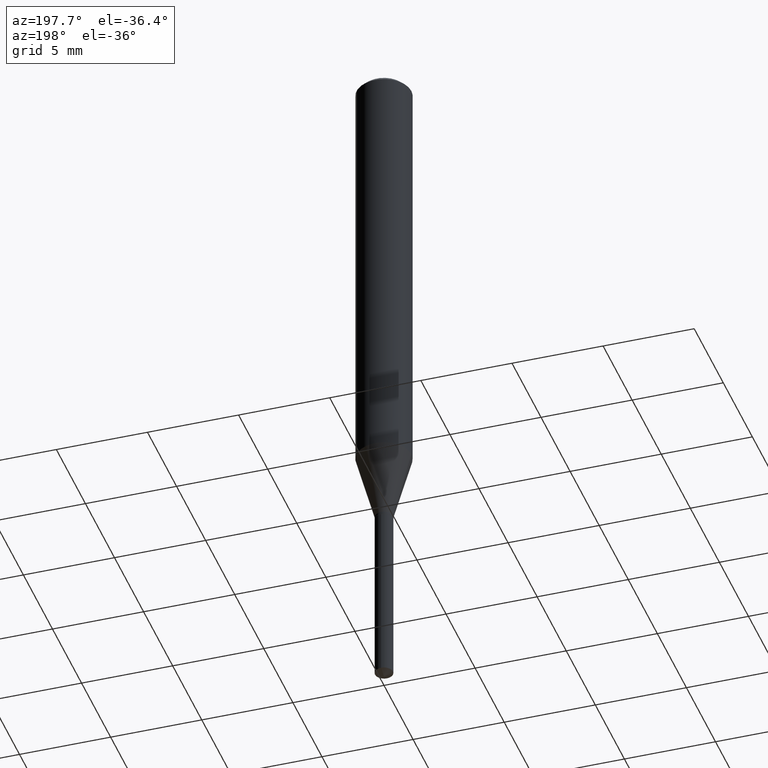
[diagram: clean part render]
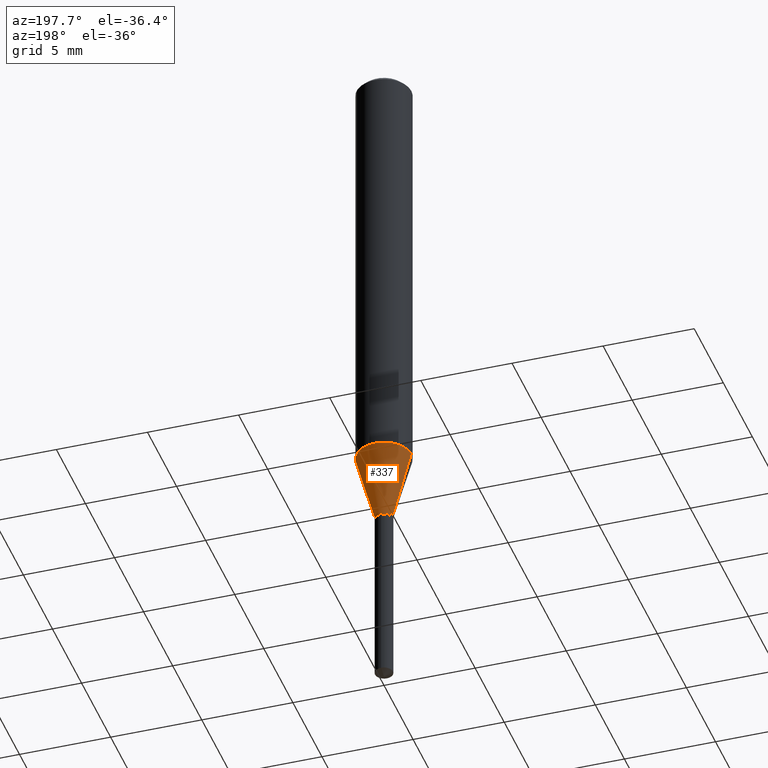
[diagram: same view with one face highlighted and labeled with its STEP entity id]
A machine part, auxiliary view. The second image highlights one B-rep face of the part: STEP entity #337.
In plain terms, the highlighted conical surface has half-angle 15 deg.
Its self-contained STEP definition (entity closure, byte-faithful):
#1 = VERTEX_POINT ( 'NONE', #330 ) ;
#24 = DIRECTION ( 'NONE',  ( -2.445468806185136597E-29, 3.491481338843145583E-15, 1.000000000000000000 ) ) ;
#26 = DIRECTION ( 'NONE',  ( -0.2588190451025213501, 5.211531920934551042E-15, 0.9659258262890682012 ) ) ;
#40 = EDGE_CURVE ( 'NONE', #1, #348, #95, .T. ) ;
#51 = AXIS2_PLACEMENT_3D ( 'NONE', #227, #142, #300 ) ;
#56 = DIRECTION ( 'NONE',  ( 1.000000000000000000, -6.982962677686261977E-15, 0.000000000000000000 ) ) ;
#68 = FACE_OUTER_BOUND ( 'NONE', #116, .T. ) ;
#76 = VERTEX_POINT ( 'NONE', #443 ) ;
#86 = CONICAL_SURFACE ( 'NONE', #246, 0.01930000000000000118, 0.2617993877991500740 ) ;
#88 = EDGE_CURVE ( 'NONE', #188, #348, #405, .T. ) ;
#94 = CARTESIAN_POINT ( 'NONE',  ( -0.01930000000000000118, -3.673293411144767685E-15, -1.088700000000000001 ) ) ;
#95 = CIRCLE ( 'NONE', #421, 0.05905000000000010935 ) ;
#106 = VECTOR ( 'NONE', #26, 39.37007874015747433 ) ;
#108 = EDGE_CURVE ( 'NONE', #76, #188, #276, .T. ) ;
#112 = DIRECTION ( 'NONE',  ( -2.445468806185136597E-29, 3.491481338843145583E-15, 1.000000000000000000 ) ) ;
#116 = EDGE_LOOP ( 'NONE', ( #197, #119, #234, #305 ) ) ;
#119 = ORIENTED_EDGE ( 'NONE', *, *, #88, .T. ) ;
#140 = CARTESIAN_POINT ( 'NONE',  ( -0.05905000000000010241, -2.863642414560104027E-15, -0.9403509803991370042 ) ) ;
#142 = DIRECTION ( 'NONE',  ( -2.445468806185136597E-29, 3.491481338843145583E-15, 1.000000000000000000 ) ) ;
#170 = VECTOR ( 'NONE', #341, 39.37007874015747433 ) ;
#183 = CARTESIAN_POINT ( 'NONE',  ( 2.299598989431700529E-29, -3.283217900026443125E-15, -0.9403509803991370042 ) ) ;
#188 = VERTEX_POINT ( 'NONE', #94 ) ;
#197 = ORIENTED_EDGE ( 'NONE', *, *, #108, .T. ) ;
#227 = CARTESIAN_POINT ( 'NONE',  ( 2.662381889293757988E-29, -3.801175733598532543E-15, -1.088700000000000001 ) ) ;
#234 = ORIENTED_EDGE ( 'NONE', *, *, #40, .F. ) ;
#244 = LINE ( 'NONE', #275, #170 ) ;
#246 = AXIS2_PLACEMENT_3D ( 'NONE', #473, #24, #56 ) ;
#259 = CARTESIAN_POINT ( 'NONE',  ( -0.01930000000000000118, -3.664040985596833322E-15, -1.088700000000000001 ) ) ;
#275 = CARTESIAN_POINT ( 'NONE',  ( 0.01930000000000000118, -3.935946913277877352E-15, -1.088700000000000001 ) ) ;
#276 = CIRCLE ( 'NONE', #51, 0.01930000000000000118 ) ;
#300 = DIRECTION ( 'NONE',  ( 1.000000000000000000, -6.982962677686261977E-15, 0.000000000000000000 ) ) ;
#305 = ORIENTED_EDGE ( 'NONE', *, *, #368, .F. ) ;
#330 = CARTESIAN_POINT ( 'NONE',  ( 0.05905000000000010241, -3.695561846143818440E-15, -0.9403509803991370042 ) ) ;
#337 = ADVANCED_FACE ( 'NONE', ( #68 ), #86, .T. ) ;
#341 = DIRECTION ( 'NONE',  ( 0.2588190451025213501, 1.565188264969621968E-15, 0.9659258262890682012 ) ) ;
#348 = VERTEX_POINT ( 'NONE', #140 ) ;
#368 = EDGE_CURVE ( 'NONE', #76, #1, #244, .T. ) ;
#405 = LINE ( 'NONE', #259, #106 ) ;
#421 = AXIS2_PLACEMENT_3D ( 'NONE', #183, #112, #475 ) ;
#443 = CARTESIAN_POINT ( 'NONE',  ( 0.01930000000000000118, -3.935946913277877352E-15, -1.088700000000000001 ) ) ;
#473 = CARTESIAN_POINT ( 'NONE',  ( 2.662381889293757988E-29, -3.801175733598532543E-15, -1.088700000000000001 ) ) ;
#475 = DIRECTION ( 'NONE',  ( 1.000000000000000000, -6.982962677686267499E-15, 0.000000000000000000 ) ) ;